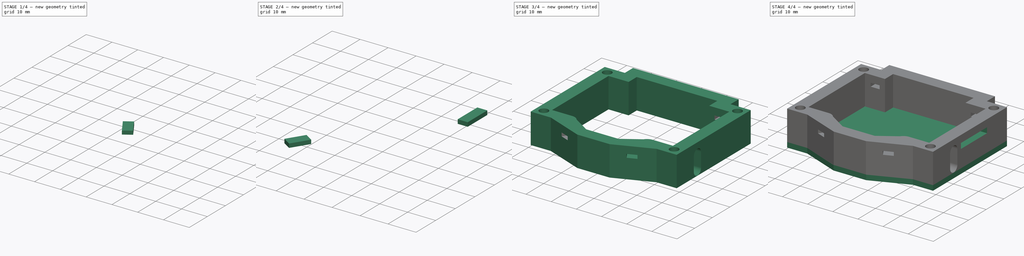
[diagram: build sequence overview — one tinted view per stage of 4, left to right]
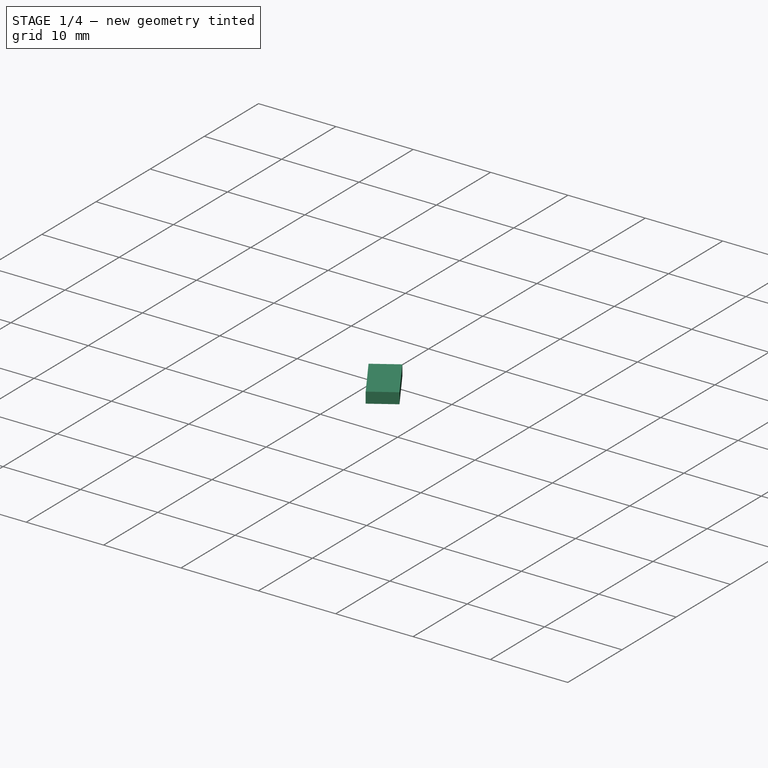
[diagram: stage 1 of 4 — iso view after this stage's code; geometry added in this stage tinted green]
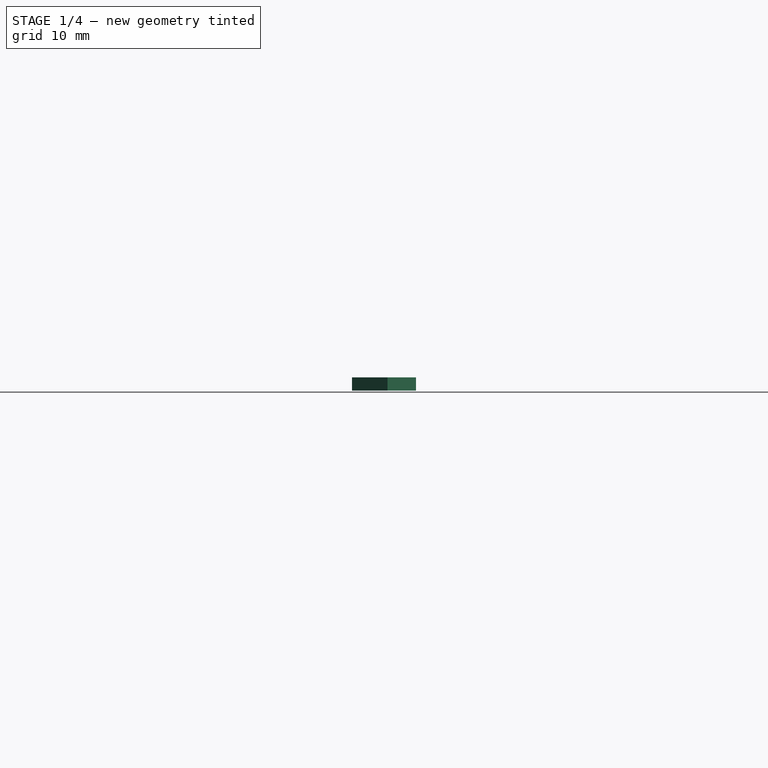
[diagram: stage 1 of 4 — front view after this stage's code; geometry added in this stage tinted green]
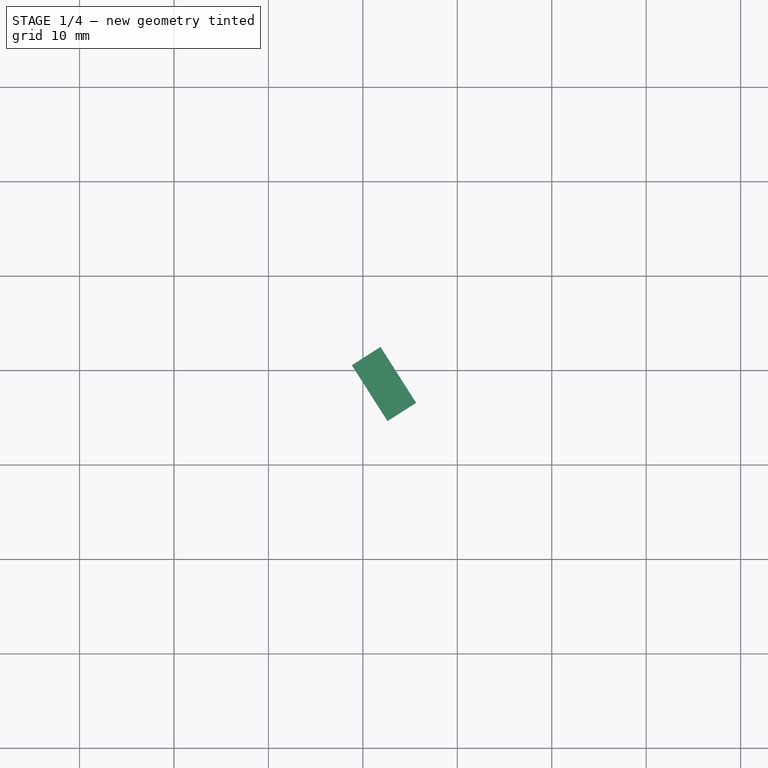
[diagram: stage 1 of 4 — top view after this stage's code; geometry added in this stage tinted green]
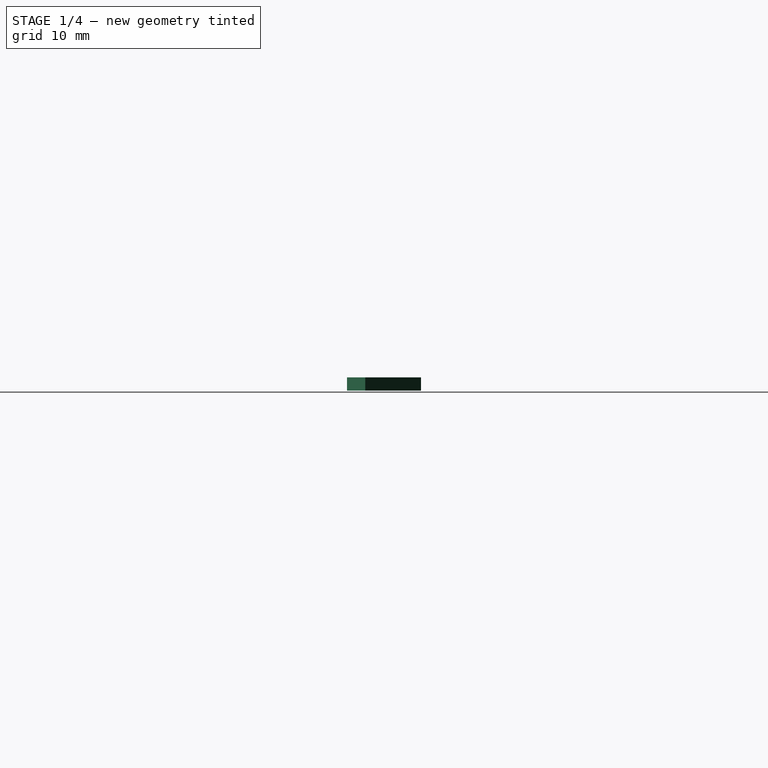
[diagram: stage 1 of 4 — right view after this stage's code; geometry added in this stage tinted green]
FCSTD DOCUMENT  (FreeCAD 0.21R33668 +26 (Git))
Label: watchCase
License: All rights reserved
LicenseURL: http://en.wikipedia.org/wiki/All_rights_reserved
objects: Part::Feature×14, App::Part×14, Sketcher::SketchObject×8, Part::Extrusion×8, Part::Cut×6
note: 36 computed .brp shape members not serialized (recipe doc carries the construction recipe); baked Part::Feature solids carry a one-line shape summary decoded from their .brp

FEATURE [Sketcher::SketchObject] Sketch
  FullyConstrained = true
  sketch-geometry (30):
    g0: LineSegment StartX=-16 StartY=41.4 StartZ=0 EndX=16 EndY=41.4 EndZ=0
    g1: LineSegment StartX=16 StartY=41.4 StartZ=0 EndX=16 EndY=36.8 EndZ=0
    g2: LineSegment StartX=16 StartY=36.8 StartZ=0 EndX=24 EndY=36.8 EndZ=0
    g3: LineSegment StartX=24 StartY=36.8 StartZ=0 EndX=24 EndY=4.8 EndZ=0
    g4: LineSegment StartX=-16 StartY=41.4 StartZ=0 EndX=-16 EndY=36.8 EndZ=0
    g5: LineSegment StartX=-16 StartY=36.8 StartZ=0 EndX=-24 EndY=36.8 EndZ=0
    g6: LineSegment StartX=-24 StartY=36.8 StartZ=0 EndX=-24 EndY=4.8 EndZ=0
    g7: LineSegment StartX=-6.4 StartY=-1 StartZ=0 EndX=6.4 EndY=-1 EndZ=0
    g8: LineSegment StartX=6.4 StartY=-1 StartZ=0 EndX=13.3 EndY=3.4 EndZ=0
    g9: LineSegment StartX=-6.4 StartY=-1 StartZ=0 EndX=-13.3 EndY=3.4 EndZ=0
    g10: LineSegment StartX=-24 StartY=4.8 StartZ=0 EndX=-16 EndY=4.8 EndZ=0
    g11: LineSegment StartX=24 StartY=4.8 StartZ=0 EndX=16 EndY=4.8 EndZ=0
    g12: ArcOfCircle CenterX=-16 CenterY=1.49643 CenterZ=0 NormalX=0 NormalY=0 NormalZ=1 AngleXU=0 Radius=3.30357 StartAngle=0.614091 EndAngle=1.5708
    g13: ArcOfCircle CenterX=16 CenterY=1.49643 CenterZ=0 NormalX=0 NormalY=0 NormalZ=1 AngleXU=0 Radius=3.30357 StartAngle=1.5708 EndAngle=2.5275
    g14: LineSegment StartX=-21 StartY=46.4 StartZ=0 EndX=21 EndY=46.4 EndZ=0
    g15: LineSegment StartX=21 StartY=46.4 StartZ=0 EndX=21 EndY=41.8 EndZ=0
    g16: LineSegment StartX=21 StartY=41.8 StartZ=0 EndX=29 EndY=41.8 EndZ=0
    g17: LineSegment StartX=29 StartY=41.8 StartZ=0 EndX=29 EndY=-0.2 EndZ=0
    g18: LineSegment StartX=29 StartY=-0.2 StartZ=0 EndX=21 EndY=-0.2 EndZ=0
    g19: LineSegment StartX=21 StartY=-0.2 StartZ=0 EndX=6.4 EndY=-6 EndZ=0
    g20: LineSegment StartX=6.4 StartY=-6 StartZ=0 EndX=-6.4 EndY=-6 EndZ=0
    g21: LineSegment StartX=-6.4 StartY=-6 StartZ=0 EndX=-21 EndY=-0.2 EndZ=0
    g22: LineSegment StartX=-21 StartY=-0.2 StartZ=0 EndX=-29 EndY=-0.2 EndZ=0
    g23: LineSegment StartX=-29 StartY=-0.2 StartZ=0 EndX=-29 EndY=41.8 EndZ=0
    g24: LineSegment StartX=-29 StartY=41.8 StartZ=0 EndX=-21 EndY=41.8 EndZ=0
    g25: LineSegment StartX=-21 StartY=46.4 StartZ=0 EndX=-21 EndY=41.8 EndZ=0
    g26: Circle CenterX=-25.875 CenterY=38.79 CenterZ=0 NormalX=0 NormalY=0 NormalZ=1 AngleXU=0 Radius=1.75
    g27: Circle CenterX=25.875 CenterY=38.79 CenterZ=0 NormalX=0 NormalY=0 NormalZ=1 AngleXU=0 Radius=1.75
    g28: Circle CenterX=25.875 CenterY=2.81 CenterZ=0 NormalX=0 NormalY=0 NormalZ=1 AngleXU=0 Radius=1.75
    g29: Circle CenterX=-25.875 CenterY=2.81 CenterZ=0 NormalX=0 NormalY=0 NormalZ=1 AngleXU=0 Radius=1.75
  constraints (92):
    c: Horizontal(g0)
    c: Coincident(g1,g0)
    c: Coincident(g2,g1)
    c: Horizontal(g2)
    c: Coincident(g3,g2)
    c: Vertical(g3)
    c: Coincident(g4,g0)
    c: Coincident(g5,g4)
    c: Horizontal(g5)
    c: Coincident(g6,g5)
    c: Vertical(g6)
    c: Horizontal(g7)
    c: Coincident(g8,g7)
    c: Coincident(g9,g7)
    c: Distance(g0) = 32
    c: Distance(g4) = 4.6
    c: Distance(g1) = 4.6
    c: Distance(g2) = 8
    c: Distance(g5) = 8
    c: Distance(g7) = 12.8
    c: Distance(g6) = 32
    c: Distance(g3) = 32
    c: Perpendicular(g1,g0)
    c: Perpendicular(g0,g4)
    c: DistanceX(g0,g-1) = 16
    c: DistanceY(g-1,g0) = 41.4
    c: DistanceX(g-1,g7) = 6.4
    c: DistanceX(g-1,g8) = 13.3
    c: DistanceX(g9,g-1) = 13.3
    c: DistanceY(g7,g8) = 4.4
    c: DistanceY(g7,g9) = 4.4
    c: DistanceY(g7,g-1) = 1
    c: Coincident(g10,g6)
    c: Horizontal(g10)
    c: Coincident(g11,g3)
    c: Horizontal(g11)
    c: Distance(g11) = 8
    c: Coincident(g12,g10)
    c: Coincident(g12,g9)
    c: Coincident(g13,g11)
    c: Coincident(g13,g8)
    c: Horizontal(g14)
    c: Coincident(g15,g14)
    c: Coincident(g16,g15)
    c: Horizontal(g16)
    c: Coincident(g17,g16)
    c: Vertical(g17)
    c: Coincident(g18,g17)
    c: Horizontal(g18)
    c: Coincident(g19,g18)
    c: Coincident(g20,g19)
    c: Coincident(g21,g20)
    c: Coincident(g22,g21)
    c: Horizontal(g22)
    c: Coincident(g23,g22)
    c: Vertical(g23)
    c: Coincident(g24,g23)
    c: Horizontal(g24)
    c: Coincident(g25,g14)
    c: Coincident(g25,g24)
    c: DistanceY(g0,g14) = 5
    c: DistanceY(g5,g23) = 5
    c: DistanceY(g2,g16) = 5
    c: DistanceX(g1,g15) = 5
    c: DistanceX(g0,g14) = 5
    c: DistanceX(g2,g16) = 5
    c: DistanceX(g24,g4) = 5
    c: DistanceX(g14,g0) = 5
    c: DistanceX(g23,g5) = 5
    c: DistanceX(g21,g10) = 5
    c: DistanceX(g18,g11) = -5
    c: DistanceY(g19,g7) = 5
    c: DistanceY(g20,g7) = 5
    c: DistanceX(g20,g7) = 0
    c: DistanceX(g7,g19) = 0
    c: DistanceY(g17,g3) = 5
    c: DistanceY(g22,g6) = 5
    c: DistanceY(g26,g23) = 3.01
    c: DistanceX(g23,g26) = 3.125
    c: Diameter(g26) = 3.5
    c: Diameter(g27) = 3.5
    c: DistanceX(g27,g16) = 3.125
    c: DistanceY(g27,g16) = 3.01
    c: DistanceY(g22,g29) = 3.01
    c: DistanceX(g22,g29) = 3.125
    c: Diameter(g29) = 3.5
    c: Diameter(g28) = 3.5
    c: DistanceY(g17,g28) = 3.01
    c: DistanceX(g28,g17) = 3.125
    c: DistanceX(g6,g10) = 8
    c: DistanceX(g10,g12) = 0
    c: DistanceX(g13,g11) = 0
FEATURE [Part::Extrusion] Extrude
  Base = -> Sketch
  Dir = (0,0,1)
  DirMode = 2
  FaceMakerClass = Part::FaceMakerBullseye
  LengthFwd = 12
  LengthRev = 0
  Solid = true
  Symmetric = false
FEATURE [Part::Feature] Part__Feature  label="COMPOUND"
  shape: bbox 9.6 x 2.201 x 14 mm, 546 faces, 34 solids (baked)
FEATURE [App::Part] L96_M33  label="L96-M33"
  Group = -> [Part__Feature]
  Origin = -> Origin
  Placement = pos=(0,33.9,1.63) rot=(0,0.707107,0.707107;3.14159rad)
FEATURE [Part::Feature] Part__Feature001  label="COMPOUND001"
  shape: bbox 11.55 x 3.77 x 14.66 mm, 1139 faces (baked)
FEATURE [App::Part] _169890001  label="2169890001"
  Group = -> [Part__Feature001]
  Origin = -> Origin001
  Placement = pos=(-18.85,11.34,4.63) rot=(0.707107,0,0.707107;3.14159rad)
FEATURE [Part::Feature] Part__Feature002  label="COMPOUND002"
  shape: bbox 13.2 x 2.553 x 19 mm, 864 faces, 77 solids (baked)
FEATURE [App::Part] ESP32_MINI_1_N4__3DModel_STEP_56544  label="ESP32-MINI-1-N4--3DModel-STEP-56544"
  Group = -> [Part__Feature002]
  Origin = -> Origin002
  Placement = pos=(13.65,18.1625,1.63) rot=(0.57735,-0.57735,-0.57735;2.0944rad)
FEATURE [Part::Feature] Part__Feature003  label="COMPOUND003"
  shape: bbox 4.7 x 1.35 x 3.55 mm, 317 faces, 7 solids (baked)
FEATURE [App::Part] EVQ_P7J01P  label="EVQ-P7J01P"
  Group = -> [Part__Feature003]
  Origin = -> Origin003
  Placement = pos=(-9.1,3.5,1.63) rot=(0.924452,-0.269619,-0.269619;1.64927rad)
FEATURE [Part::Feature] Part__Feature004  label="COMPOUND004"
  shape: bbox 1 x 0.6 x 1 mm, 79 faces, 7 solids (baked)
FEATURE [App::Part] VREG_MIC5504_3_3YMT_TZ  label="VREG_MIC5504-3.3YMT-TZ"
  Group = -> [Part__Feature004]
  Origin = -> Origin004
  Placement = pos=(0.151,6.227,1.63) rot=(0,0.707107,0.707107;3.14159rad)
FEATURE [Part::Feature] Part__Feature005  label="COMPOUND005"
  shape: bbox 14.6 x 1.8 x 14.45 mm, 840 faces, 16 solids (baked)
FEATURE [App::Part] MEM2067_02_180_00_A_REVB  label="MEM2067-02-180-00-A_REVB"
  Group = -> [Part__Feature005]
  Origin = -> Origin005
  Placement = pos=(-15.5,23.1,1.63) rot=(0.57735,-0.57735,-0.57735;2.0944rad)
FEATURE [Part::Feature] Part__Feature006  label="COMPOUND006"
  shape: bbox 6 x 1.75 x 4.9 mm, 126 faces, 9 solids (baked)
FEATURE [App::Part] _3K256_I_SN  label="23K256-I_SN"
  Group = -> [Part__Feature006]
  Origin = -> Origin006
  Placement = pos=(-2.4,14.4,1.63) rot=(0.57735,-0.57735,-0.57735;2.0944rad)
FEATURE [Part::Feature] Part__Feature007  label="COMPOUND007"
  shape: bbox 4.7 x 1.35 x 3.55 mm, 317 faces, 7 solids (baked)
FEATURE [App::Part] EVQ_P7J01P001  label="EVQ-P7J01P001"
  Group = -> [Part__Feature007]
  Origin = -> Origin007
  Placement = pos=(-19.9,35.3,1.63) rot=(0,0.707107,0.707107;3.14159rad)
FEATURE [Part::Feature] Part__Feature008  label="COMPOUND008"
  shape: bbox 4.7 x 1.35 x 3.55 mm, 317 faces, 7 solids (baked)
FEATURE [App::Part] EVQ_P7J01P002  label="EVQ-P7J01P002"
  Group = -> [Part__Feature008]
  Origin = -> Origin008
  Placement = pos=(9.1,3.5,1.63) rot=(0.924447,0.269627,0.269627;1.64928rad)
FEATURE [Part::Feature] Part__Feature009  label="COMPOUND009"
  shape: bbox 1.5 x 0.6 x 1.5 mm, 95 faces, 10 solids (baked)
FEATURE [App::Part] uqfn_1p5x1p5_8_tps22933
  Group = -> [Part__Feature009]
  Origin = -> Origin009
  Placement = pos=(-8.8,8.25,1.63) rot=(1,0,0;1.5708rad)
FEATURE [Part::Feature] Part__Feature010  label="COMPOUND010"
  shape: bbox 1 x 0.6 x 1 mm, 79 faces, 7 solids (baked)
FEATURE [App::Part] VREG_MIC5504_3_3YMT_TZ001  label="VREG_MIC5504-3.3YMT-TZ001"
  Group = -> [Part__Feature010]
  Origin = -> Origin010
  Placement = pos=(0.164,4.527,1.63) rot=(0,0.707107,0.707107;3.14159rad)
FEATURE [Part::Feature] Part__Feature011  label="COMPOUND011"
  shape: bbox 4.7 x 1.35 x 3.55 mm, 317 faces, 7 solids (baked)
FEATURE [App::Part] EVQ_P7J01P003  label="EVQ-P7J01P003"
  Group = -> [Part__Feature011]
  Origin = -> Origin011
  Placement = pos=(19.9,35.3,1.63) rot=(0,0.707107,0.707107;3.14159rad)
FEATURE [Part::Feature] Part__Feature012  label="COMPOUND012"
  shape: bbox 3 x 0.8 x 3 mm, 151 faces, 14 solids (baked)
FEATURE [App::Part] FT234XD_R__3DModel_STEP_1  label="FT234XD-R--3DModel-STEP-1"
  Group = -> [Part__Feature012]
  Origin = -> Origin012
  Placement = pos=(-2.725,2.565,-0.05) rot=(-1,0,0;1.5708rad)
FEATURE [Part::Feature] Part__Feature013  label="osw PCB"
  shape: bbox 46 x 41.4 x 1.58 mm, 130 faces (baked)
FEATURE [App::Part] osw_1  label="osw 1"
  Group = -> [L96_M33,_169890001,ESP32_MINI_1_N4__3DModel_STEP_56544,EVQ_P7J01P,VREG_MIC5504_3_3YMT_TZ,MEM2067_02_180_00_A_REVB,_3K256_I_SN,EVQ_P7J01P001,EVQ_P7J01P002,uqfn_1p5x1p5_8_tps22933,VREG_MIC5504_3_3YMT_TZ001,EVQ_P7J01P003,FT234XD_R__3DModel_STEP_1,Part__Feature013]
  Origin = -> Origin013
  Placement = pos=(0,0,10.75) rot=(0,1,0;3.14159rad)
FEATURE [Sketcher::SketchObject] Sketch002
  FullyConstrained = true
  MapMode = 5
  Placement = pos=(29,0,0) rot=(0.57735,0.57735,0.57735;2.0944rad)
  Support = -> [Extrude]
  sketch-geometry (4):
    g0: ArcOfCircle CenterX=11.59 CenterY=7.65 CenterZ=0 NormalX=0 NormalY=0 NormalZ=1 AngleXU=0 Radius=2.075 StartAngle=0 EndAngle=3.14159
    g1: ArcOfCircle CenterX=11.59 CenterY=2.15 CenterZ=0 NormalX=0 NormalY=0 NormalZ=1 AngleXU=0 Radius=2.075 StartAngle=3.14159 EndAngle=6.28319
    g2: LineSegment StartX=9.515 StartY=7.65 StartZ=0 EndX=9.515 EndY=2.15 EndZ=0
    g3: LineSegment StartX=13.665 StartY=2.15 StartZ=0 EndX=13.665 EndY=7.65 EndZ=0
  constraints (14):
    c: Coincident(g2,g0)
    c: Coincident(g2,g1)
    c: Vertical(g2)
    c: Coincident(g3,g1)
    c: Coincident(g3,g0)
    c: Equal(g2,g3)
    c: Parallel(g2,g3)
    c: DistanceY(g0,g0) = 0
    c: DistanceY(g1,g1) = 0
    c: DistanceY(g0,g0) = 0
    c: DistanceX(g0,g0) = 4.15
    c: DistanceX(g-1,g1) = 11.59
    c: DistanceY(g-1,g1) = 2.15
    c: DistanceY(g1,g0) = 5.5
FEATURE [Part::Extrusion] Extrude002
  Base = -> Sketch002
  Dir = (1,0,0)
  DirMode = 2
  FaceMakerClass = Part::FaceMakerBullseye
  LengthFwd = -5
  LengthRev = 0
  Solid = true
  Symmetric = false
FEATURE [Part::Cut] Cut
  Base = -> Extrude
  Tool = -> Extrude002
FEATURE [Sketcher::SketchObject] Sketch003
  FullyConstrained = false
  MapMode = 5
  Placement = pos=(2.30348,-3.61227,0) rot=(-0.202017,0.692528,0.692528;3.54026rad)
  Support = -> [Cut]
  sketch-geometry (4):
    g0: LineSegment StartX=-7.75879 StartY=9.11361 StartZ=0 EndX=-11.3387 EndY=9.11361 EndZ=0
    g1: LineSegment StartX=-11.3387 StartY=9.11361 StartZ=0 EndX=-11.3387 EndY=7.71042 EndZ=0
    g2: LineSegment StartX=-11.3387 StartY=7.71042 StartZ=0 EndX=-7.75879 EndY=7.71042 EndZ=0
    g3: LineSegment StartX=-7.75879 StartY=7.71042 StartZ=0 EndX=-7.75879 EndY=9.11361 EndZ=0
  constraints (8):
    c: Coincident(g0,g1)
    c: Coincident(g1,g2)
    c: Coincident(g2,g3)
    c: Coincident(g3,g0)
    c: Horizontal(g0)
    c: Horizontal(g2)
    c: Vertical(g1)
    c: Vertical(g3)
FEATURE [Part::Extrusion] Extrude003
  Base = -> Sketch003
  Dir = (-0.537666,0.843158,0)
  DirMode = 2
  FaceMakerClass = Part::FaceMakerBullseye
  LengthFwd = -7
  LengthRev = 0
  Solid = true
  Symmetric = false
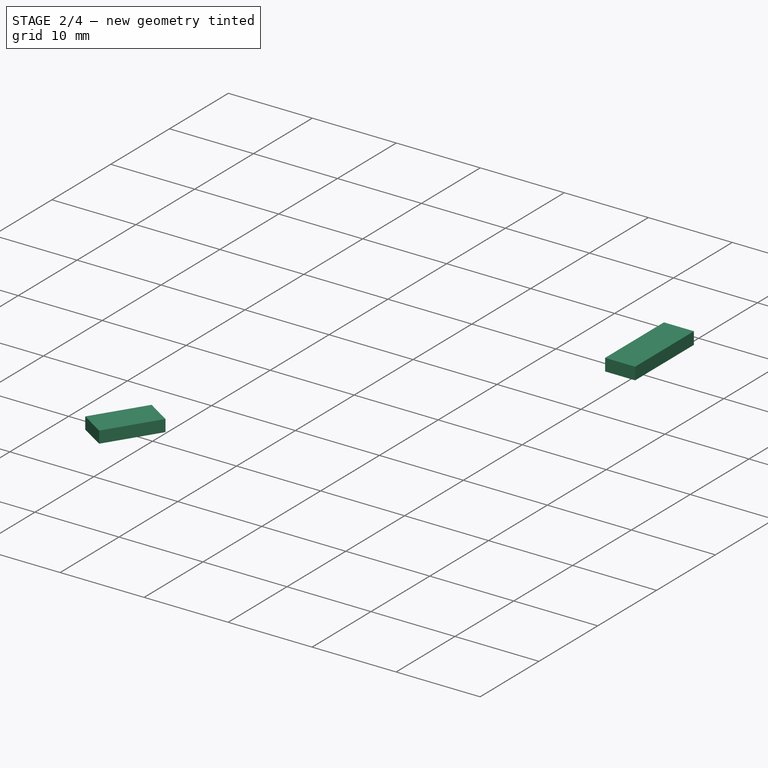
[diagram: stage 2 of 4 — iso view after this stage's code; geometry added in this stage tinted green]
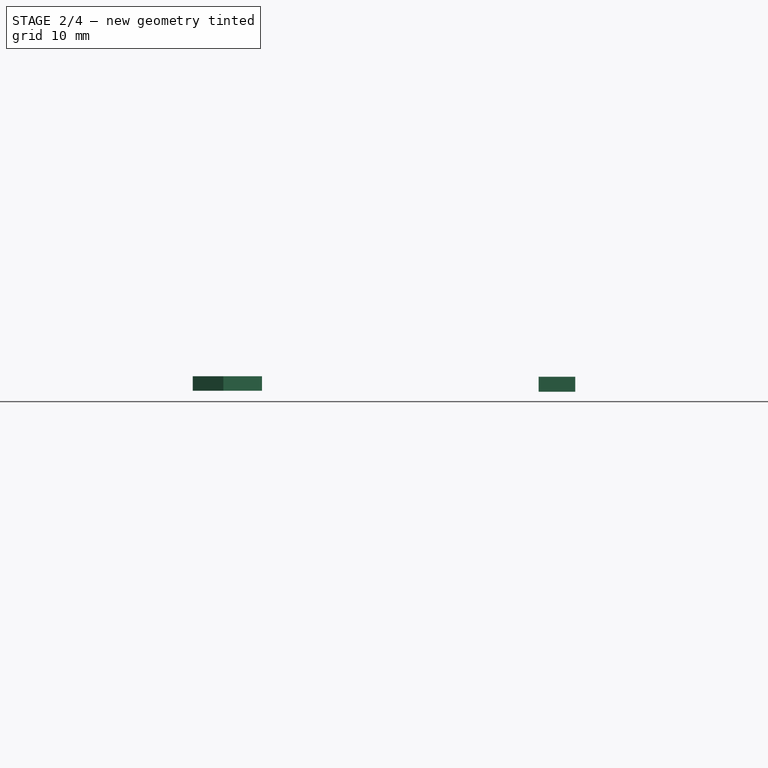
[diagram: stage 2 of 4 — front view after this stage's code; geometry added in this stage tinted green]
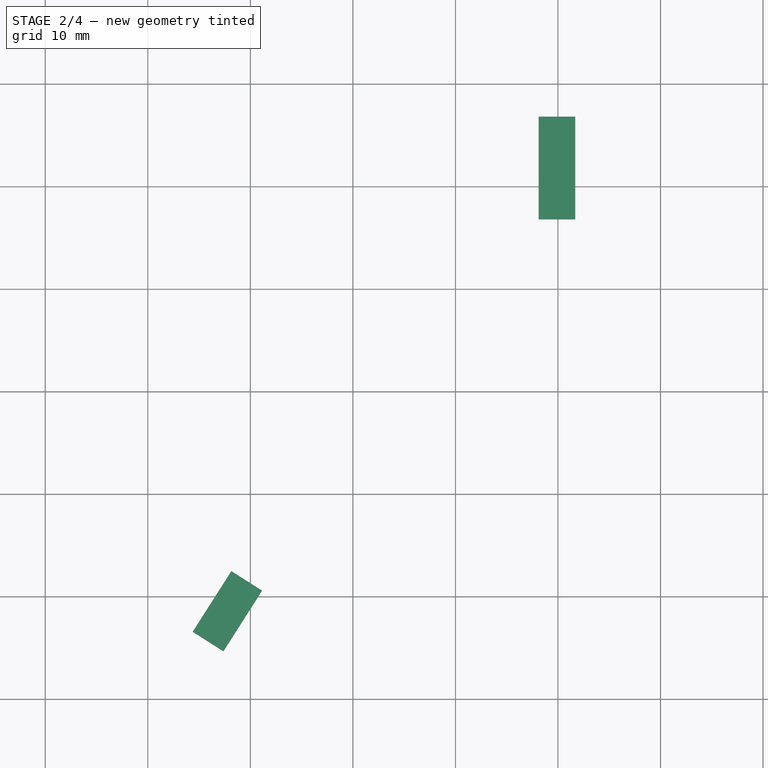
[diagram: stage 2 of 4 — top view after this stage's code; geometry added in this stage tinted green]
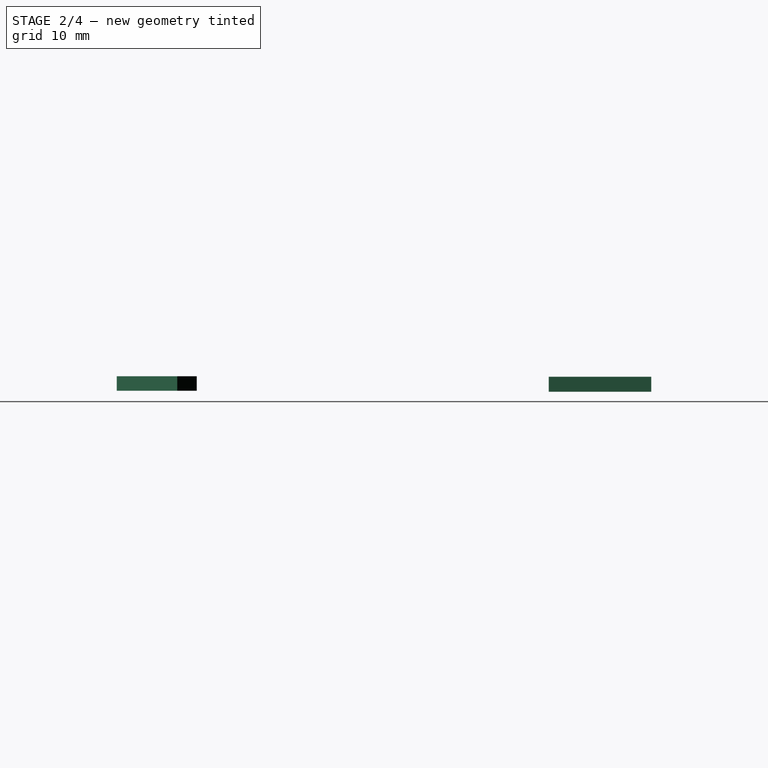
[diagram: stage 2 of 4 — right view after this stage's code; geometry added in this stage tinted green]
FEATURE [Part::Cut] Cut001
  Base = -> Cut
  Tool = -> Extrude003
FEATURE [Sketcher::SketchObject] Sketch004
  FullyConstrained = false
  MapMode = 5
  Placement = pos=(-2.30348,-3.61227,0) rot=(0.202017,0.692528,0.692528;2.74293rad)
  Support = -> [Cut001]
  sketch-geometry (4):
    g0: LineSegment StartX=11.3217 StartY=9.14448 StartZ=0 EndX=7.78013 EndY=9.14448 EndZ=0
    g1: LineSegment StartX=7.78013 StartY=9.14448 StartZ=0 EndX=7.78013 EndY=7.73299 EndZ=0
    g2: LineSegment StartX=7.78013 StartY=7.73299 StartZ=0 EndX=11.3217 EndY=7.73299 EndZ=0
    g3: LineSegment StartX=11.3217 StartY=7.73299 StartZ=0 EndX=11.3217 EndY=9.14448 EndZ=0
  constraints (8):
    c: Coincident(g0,g1)
    c: Coincident(g1,g2)
    c: Coincident(g2,g3)
    c: Coincident(g3,g0)
    c: Horizontal(g0)
    c: Horizontal(g2)
    c: Vertical(g1)
    c: Vertical(g3)
FEATURE [Sketcher::SketchObject] Sketch005
  FullyConstrained = false
  MapMode = 5
  Placement = pos=(0,36.8,0) rot=(1,0,0;1.5708rad)
  Support = -> [Cut001]
  sketch-geometry (4):
    g0: LineSegment StartX=21.682 StartY=9.1016 StartZ=0 EndX=18.1087 EndY=9.1016 EndZ=0
    g1: LineSegment StartX=18.1087 StartY=9.1016 StartZ=0 EndX=18.1087 EndY=7.6362 EndZ=0
    g2: LineSegment StartX=18.1087 StartY=7.6362 StartZ=0 EndX=21.682 EndY=7.6362 EndZ=0
    g3: LineSegment StartX=21.682 StartY=7.6362 StartZ=0 EndX=21.682 EndY=9.1016 EndZ=0
  constraints (8):
    c: Coincident(g0,g1)
    c: Coincident(g1,g2)
    c: Coincident(g2,g3)
    c: Coincident(g3,g0)
    c: Horizontal(g0)
    c: Horizontal(g2)
    c: Vertical(g1)
    c: Vertical(g3)
FEATURE [Part::Extrusion] Extrude004
  Base = -> Sketch005
  Dir = (0,-1,2e-16)
  DirMode = 2
  FaceMakerClass = Part::FaceMakerBullseye
  LengthFwd = -10
  LengthRev = 0
  Solid = true
  Symmetric = false
FEATURE [Sketcher::SketchObject] Sketch006
  FullyConstrained = false
  MapMode = 5
  Placement = pos=(0,36.8,0) rot=(1,0,0;1.5708rad)
  Support = -> [Cut002]
  sketch-geometry (4):
    g0: LineSegment StartX=-18.1336 StartY=9.14341 StartZ=0 EndX=-21.688 EndY=9.14341 EndZ=0
    g1: LineSegment StartX=-21.688 StartY=9.14341 StartZ=0 EndX=-21.688 EndY=7.71908 EndZ=0
    g2: LineSegment StartX=-21.688 StartY=7.71908 StartZ=0 EndX=-18.1336 EndY=7.71908 EndZ=0
    g3: LineSegment StartX=-18.1336 StartY=7.71908 StartZ=0 EndX=-18.1336 EndY=9.14341 EndZ=0
  constraints (8):
    c: Coincident(g0,g1)
    c: Coincident(g1,g2)
    c: Coincident(g2,g3)
    c: Coincident(g3,g0)
    c: Horizontal(g0)
    c: Horizontal(g2)
    c: Vertical(g1)
    c: Vertical(g3)
FEATURE [Part::Extrusion] Extrude005
  Base = -> Sketch004
  Dir = (0.537666,0.843158,0)
  DirMode = 2
  FaceMakerClass = Part::FaceMakerBullseye
  LengthFwd = -7
  LengthRev = 0
  Solid = true
  Symmetric = false
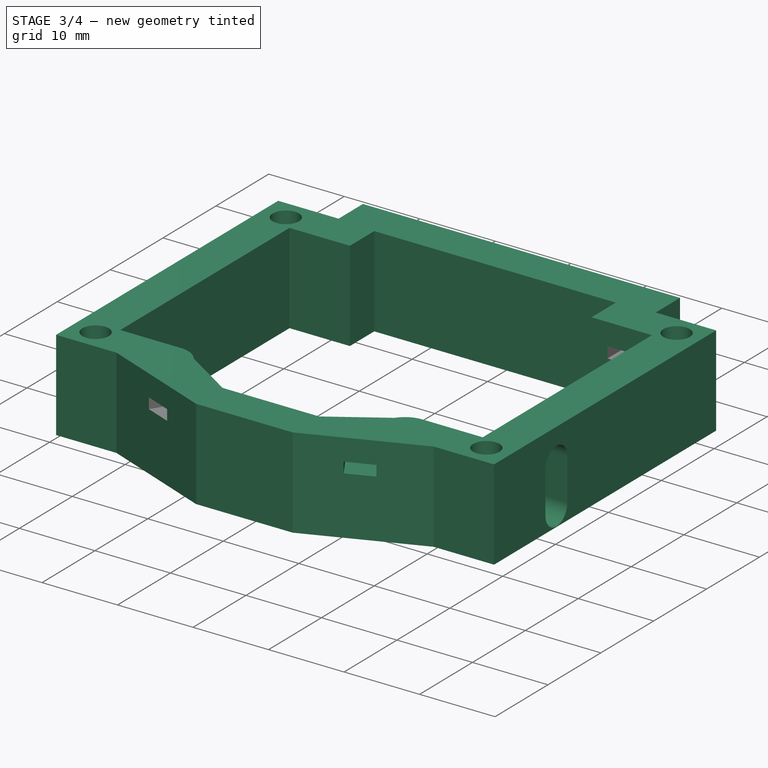
[diagram: stage 3 of 4 — iso view after this stage's code; geometry added in this stage tinted green]
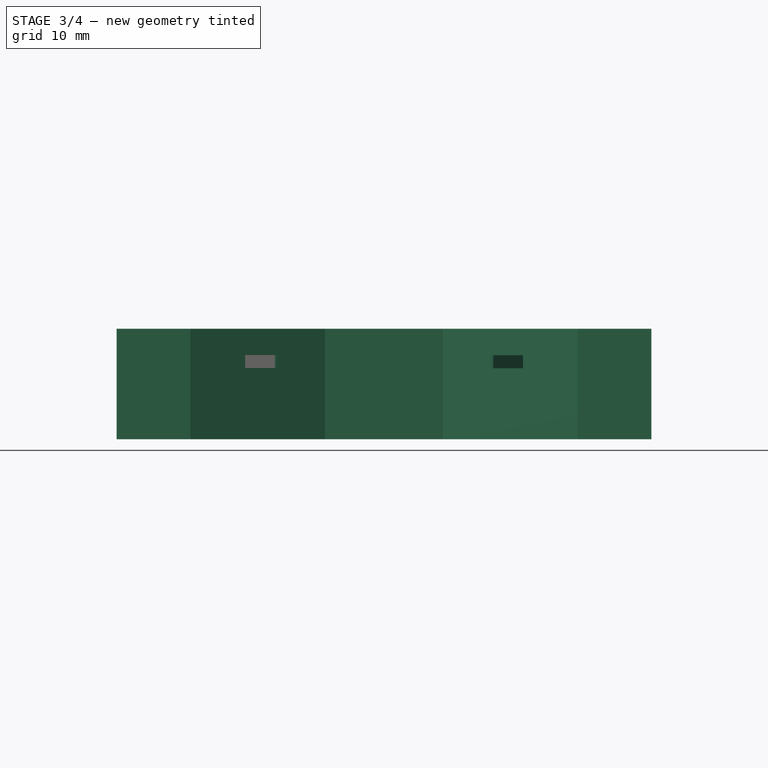
[diagram: stage 3 of 4 — front view after this stage's code; geometry added in this stage tinted green]
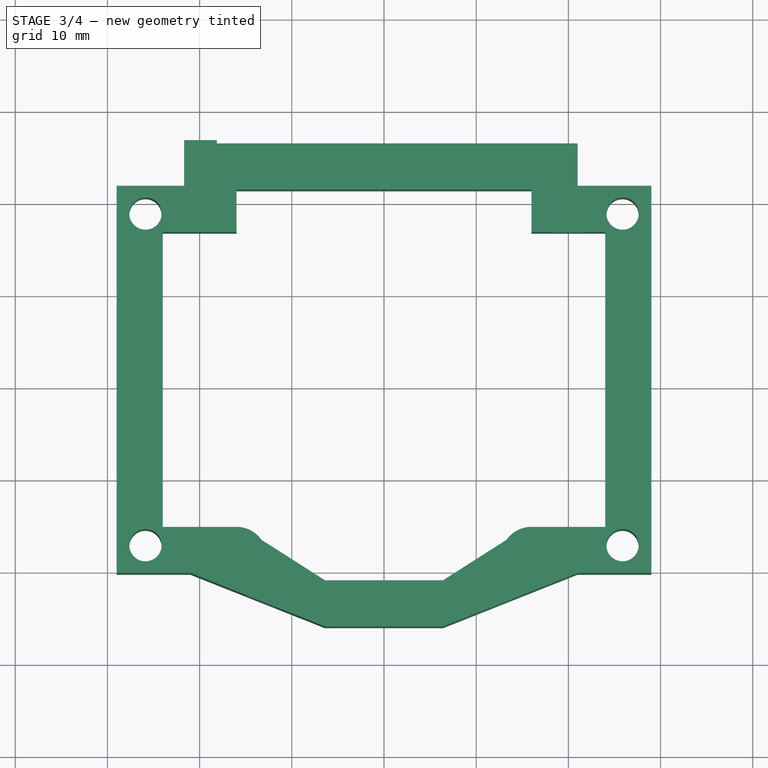
[diagram: stage 3 of 4 — top view after this stage's code; geometry added in this stage tinted green]
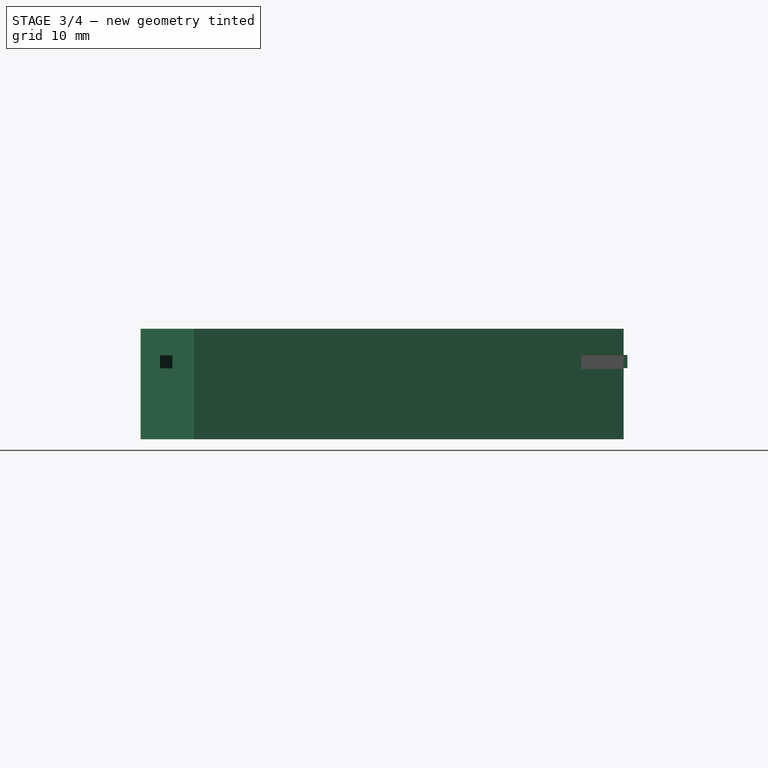
[diagram: stage 3 of 4 — right view after this stage's code; geometry added in this stage tinted green]
FEATURE [Part::Cut] Cut002
  Base = -> Cut001
  Tool = -> Extrude004
FEATURE [Part::Extrusion] Extrude006
  Base = -> Sketch006
  Dir = (0,-1,2e-16)
  DirMode = 2
  FaceMakerClass = Part::FaceMakerBullseye
  LengthFwd = -10
  LengthRev = 0
  Solid = true
  Symmetric = false
FEATURE [Part::Cut] Cut003
  Base = -> Cut002
  Tool = -> Extrude005
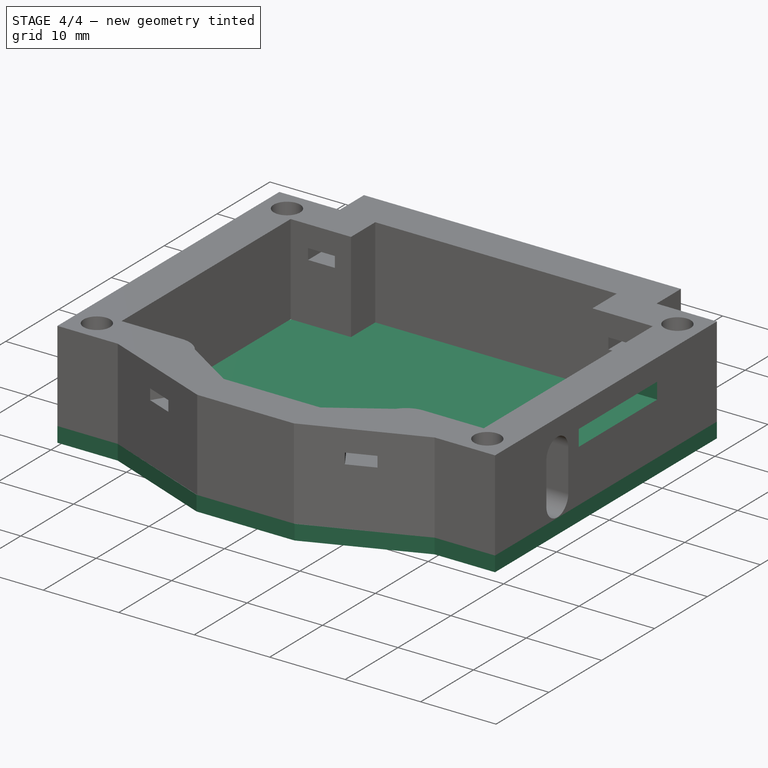
[diagram: stage 4 of 4 — iso view after this stage's code; geometry added in this stage tinted green]
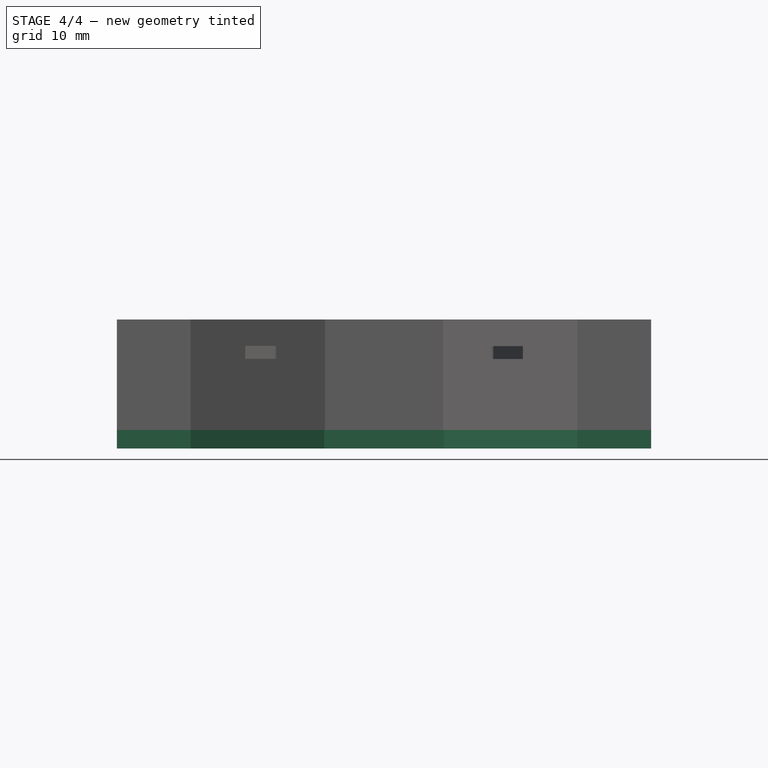
[diagram: stage 4 of 4 — front view after this stage's code; geometry added in this stage tinted green]
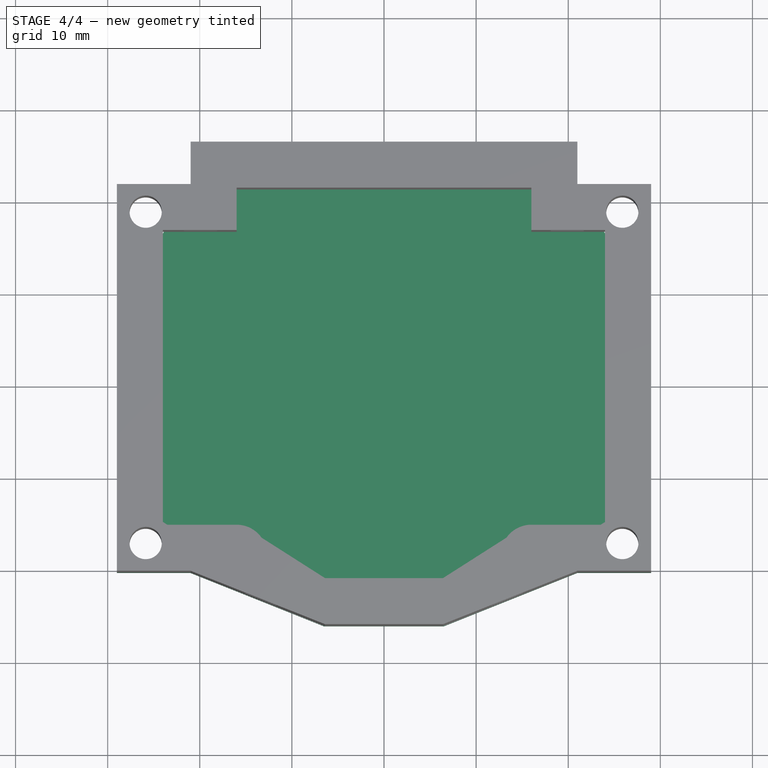
[diagram: stage 4 of 4 — top view after this stage's code; geometry added in this stage tinted green]
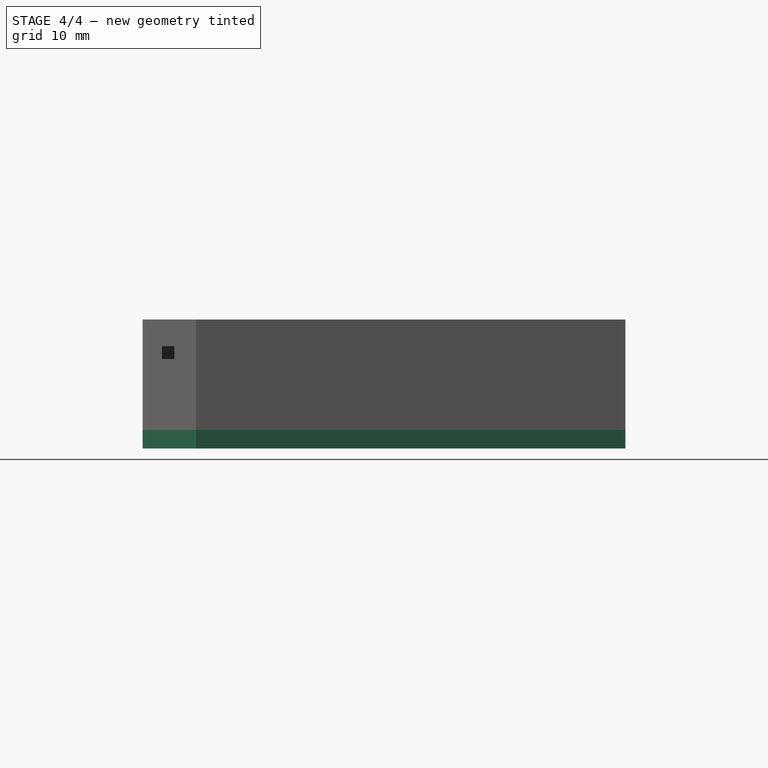
[diagram: stage 4 of 4 — right view after this stage's code; geometry added in this stage tinted green]
FEATURE [Sketcher::SketchObject] Sketch001
  FullyConstrained = true
  MapMode = 5
  Placement = pos=(0,0,0) rot=(1,0,0;3.14159rad)
  Support = -> [Extrude]
  sketch-geometry (36):
    g0: LineSegment StartX=-6.5 StartY=6 StartZ=0 EndX=6.5 EndY=6 EndZ=0
    g1: LineSegment StartX=6.5 StartY=6 StartZ=0 EndX=21 EndY=0.2 EndZ=0
    g2: LineSegment StartX=21 StartY=0.2 StartZ=0 EndX=29 EndY=0.2 EndZ=0
    g3: LineSegment StartX=29 StartY=0.2 StartZ=0 EndX=29 EndY=-41.8 EndZ=0
    g4: LineSegment StartX=29 StartY=-41.8 StartZ=0 EndX=21 EndY=-41.8 EndZ=0
    g5: LineSegment StartX=21 StartY=-41.8 StartZ=0 EndX=21 EndY=-46.4 EndZ=0
    g6: LineSegment StartX=21 StartY=-46.4 StartZ=0 EndX=-21 EndY=-46.4 EndZ=0
    g7: LineSegment StartX=-21 StartY=-46.4 StartZ=0 EndX=-21 EndY=-41.8 EndZ=0
    g8: LineSegment StartX=-21 StartY=-41.8 StartZ=0 EndX=-29 EndY=-41.8 EndZ=0
    g9: LineSegment StartX=-29 StartY=-41.8 StartZ=0 EndX=-29 EndY=0.2 EndZ=0
    g10: LineSegment StartX=-29 StartY=0.2 StartZ=0 EndX=-21 EndY=0.2 EndZ=0
    g11: LineSegment StartX=-21 StartY=0.2 StartZ=0 EndX=-6.5 EndY=6 EndZ=0
    g12: LineSegment StartX=-27.4375 StartY=-0.1 StartZ=0 EndX=-24.3125 EndY=-0.1 EndZ=0
    g13: LineSegment StartX=-24.3125 StartY=-0.1 StartZ=0 EndX=-22.75 EndY=-2.80633 EndZ=0
    g14: LineSegment StartX=-22.75 StartY=-2.80633 StartZ=0 EndX=-24.3125 EndY=-5.51266 EndZ=0
    g15: LineSegment StartX=-24.3125 StartY=-5.51266 StartZ=0 EndX=-27.4375 EndY=-5.51266 EndZ=0
    g16: LineSegment StartX=-27.4375 StartY=-5.51266 StartZ=0 EndX=-29 EndY=-2.80633 EndZ=0
    g17: LineSegment StartX=-29 StartY=-2.80633 StartZ=0 EndX=-27.4375 EndY=-0.1 EndZ=0
    g18: LineSegment StartX=24.3125 StartY=-0.1 StartZ=0 EndX=27.4375 EndY=-0.1 EndZ=0
    g19: LineSegment StartX=27.4375 StartY=-0.1 StartZ=0 EndX=29 EndY=-2.80633 EndZ=0
    g20: LineSegment StartX=29 StartY=-2.80633 StartZ=0 EndX=27.4375 EndY=-5.51266 EndZ=0
    g21: LineSegment StartX=27.4375 StartY=-5.51266 StartZ=0 EndX=24.3125 EndY=-5.51266 EndZ=0
    g22: LineSegment StartX=24.3125 StartY=-5.51266 StartZ=0 EndX=22.75 EndY=-2.80633 EndZ=0
    g23: LineSegment StartX=22.75 StartY=-2.80633 StartZ=0 EndX=24.3125 EndY=-0.1 EndZ=0
    g24: LineSegment StartX=24.3125 StartY=-41.5 StartZ=0 EndX=27.4375 EndY=-41.5 EndZ=0
    g25: LineSegment StartX=27.4375 StartY=-41.5 StartZ=0 EndX=29 EndY=-38.7937 EndZ=0
    g26: LineSegment StartX=29 StartY=-38.7937 StartZ=0 EndX=27.4375 EndY=-36.0873 EndZ=0
    g27: LineSegment StartX=27.4375 StartY=-36.0873 StartZ=0 EndX=24.3125 EndY=-36.0873 EndZ=0
    g28: LineSegment StartX=24.3125 StartY=-36.0873 StartZ=0 EndX=22.75 EndY=-38.7937 EndZ=0
    g29: LineSegment StartX=22.75 StartY=-38.7937 StartZ=0 EndX=24.3125 EndY=-41.5 EndZ=0
    g30: LineSegment StartX=-27.4375 StartY=-41.5 StartZ=0 EndX=-24.3125 EndY=-41.5 EndZ=0
    g31: LineSegment StartX=-24.3125 StartY=-41.5 StartZ=0 EndX=-22.75 EndY=-38.7937 EndZ=0
    g32: LineSegment StartX=-22.75 StartY=-38.7937 StartZ=0 EndX=-24.3125 EndY=-36.0873 EndZ=0
    g33: LineSegment StartX=-24.3125 StartY=-36.0873 StartZ=0 EndX=-27.4375 EndY=-36.0873 EndZ=0
    g34: LineSegment StartX=-27.4375 StartY=-36.0873 StartZ=0 EndX=-29 EndY=-38.7937 EndZ=0
    g35: LineSegment StartX=-29 StartY=-38.7937 StartZ=0 EndX=-27.4375 EndY=-41.5 EndZ=0
  constraints (108):
    c: Horizontal(g0)
    c: Coincident(g1,g0)
    c: Coincident(g2,g1)
    c: Horizontal(g2)
    c: Coincident(g3,g2)
    c: Vertical(g3)
    c: Coincident(g4,g3)
    c: Horizontal(g4)
    c: Coincident(g5,g4)
    c: Coincident(g6,g5)
    c: Horizontal(g6)
    c: Coincident(g7,g6)
    c: Vertical(g7)
    c: Coincident(g8,g7)
    c: Horizontal(g8)
    c: Coincident(g9,g8)
    c: Vertical(g9)
    c: Coincident(g10,g9)
    c: Horizontal(g10)
    c: Coincident(g11,g10)
    c: Coincident(g11,g0)
    c: Distance(g0) = 13
    c: DistanceX(g0,g-1) = 6.5
    c: DistanceY(g-1,g0) = 6
    c: DistanceY(g9,g9) = 42
    c: DistanceY(g3,g3) = 42
    c: DistanceX(g8,g7) = 8
    c: DistanceX(g5,g3) = 8
    c: DistanceX(g1,g2) = 8
    c: DistanceX(g9,g10) = 8
    c: DistanceY(g6,g7) = 4.6
    c: DistanceY(g5,g4) = 4.6
    c: Perpendicular(g4,g5)
    c: DistanceX(g6,g-1) = 21
    c: DistanceX(g-1,g5) = 21
    c: DistanceY(g5,g-1) = 46.4
    c: Horizontal(g12)
    c: Coincident(g13,g12)
    c: Coincident(g14,g13)
    c: Coincident(g15,g14)
    c: Horizontal(g15)
    c: Coincident(g16,g15)
    c: Coincident(g17,g16)
    c: Coincident(g17,g12)
    c: Angle(g13,g14) = 2.0944
    c: Angle(g16,g17) = 2.0944
    c: Angle(g17,g12) = 2.0944
    c: Angle(g12,g13) = 2.0944
    c: Distance(g14,g12) = 6.25
    c: Distance(g13,g16) = 6.25
    c: Distance(g15,g12) = 6.25
    c: Equal(g17,g12)
    c: DistanceY(g12,g9) = 0.3
    c: DistanceX(g9,g16) = 0
    c: Coincident(g19,g18)
    c: Coincident(g20,g19)
    c: Coincident(g21,g20)
    c: Coincident(g22,g21)
    c: Coincident(g23,g22)
    c: Coincident(g23,g18)
    c: Angle(g23,g18) = 2.0944
    c: Angle(g19,g20) = 2.0944
    c: Angle(g18,g19) = 2.0944
    c: Parallel(g18,g2)
    c: Distance(g18,g21) = 6.25
    c: Distance(g18,g20) = 6.25
    c: DistanceY(g18,g2) = 0.3
    c: DistanceX(g19,g2) = 0
    c: Distance(g22,g19) = 6.25
    c: Equal(g22,g23)
    c: Equal(g20,g19)
    c: Angle(g22,g23) = 2.0944
    c: Horizontal(g24)
    c: Coincident(g25,g24)
    c: Coincident(g26,g25)
    c: Coincident(g27,g26)
    c: Horizontal(g27)
    c: Coincident(g28,g27)
    c: Coincident(g29,g28)
    c: Coincident(g29,g24)
    c: DistanceY(g3,g24) = 0.3
    c: DistanceX(g25,g3) = 0
    c: Distance(g28,g25) = 6.25
    c: Distance(g24,g26) = 6.25
    c: Distance(g27,g24) = 6.25
    c: Equal(g28,g27)
    c: Equal(g24,g29)
    c: Equal(g25,g26)
    c: Angle(g29,g28) = 2.0944
    c: Angle(g27,g26) = 2.0944
    c: Horizontal(g30)
    c: Coincident(g31,g30)
    c: Coincident(g32,g31)
    c: Coincident(g33,g32)
    c: Horizontal(g33)
    c: Coincident(g34,g33)
    c: Coincident(g35,g34)
    c: Coincident(g35,g30)
    c: DistanceX(g8,g34) = 0
    c: DistanceY(g8,g30) = 0.3
    c: Distance(g34,g31) = 6.25
    c: Distance(g32,g30) = 6.25
    c: Distance(g30,g33) = 6.25
    c: Equal(g34,g35)
    c: Equal(g30,g31)
    c: Equal(g32,g33)
    c: Angle(g35,g34) = 2.0944
    c: Angle(g33,g32) = 2.0944
FEATURE [Part::Extrusion] Extrude001
  Base = -> Sketch001
  Dir = (0,0,-1)
  DirMode = 2
  FaceMakerClass = Part::FaceMakerBullseye
  LengthFwd = 2
  LengthRev = 0
  Solid = true
  Symmetric = false
FEATURE [Part::Cut] Cut004
  Base = -> Cut003
  Tool = -> Extrude006
FEATURE [Sketcher::SketchObject] Sketch007
  FullyConstrained = false
  MapMode = 5
  Placement = pos=(24,0,0) rot=(0.57735,-0.57735,-0.57735;2.0944rad)
  Support = -> [Cut004]
  sketch-geometry (4):
    g0: LineSegment StartX=-15.6505 StartY=9.10603 StartZ=0 EndX=-30.4746 EndY=9.10603 EndZ=0
    g1: LineSegment StartX=-30.4746 StartY=9.10603 StartZ=0 EndX=-30.4746 EndY=6.96089 EndZ=0
    g2: LineSegment StartX=-30.4746 StartY=6.96089 StartZ=0 EndX=-15.6505 EndY=6.96089 EndZ=0
    g3: LineSegment StartX=-15.6505 StartY=6.96089 StartZ=0 EndX=-15.6505 EndY=9.10603 EndZ=0
  constraints (8):
    c: Coincident(g0,g1)
    c: Coincident(g1,g2)
    c: Coincident(g2,g3)
    c: Coincident(g3,g0)
    c: Horizontal(g0)
    c: Horizontal(g2)
    c: Vertical(g1)
    c: Vertical(g3)
FEATURE [Part::Extrusion] Extrude007
  Base = -> Sketch007
  Dir = (-1,0,0)
  DirMode = 2
  FaceMakerClass = Part::FaceMakerBullseye
  LengthFwd = -7
  LengthRev = 0
  Solid = true
  Symmetric = false
FEATURE [Part::Cut] Cut005
  Base = -> Cut004
  Tool = -> Extrude007
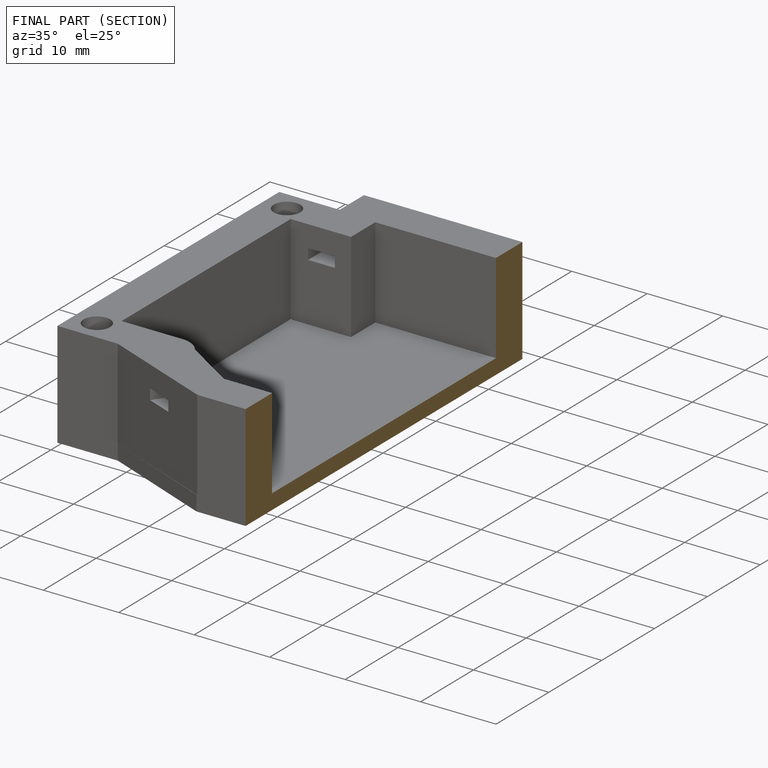
[diagram: finished part — half-section view (interior)]
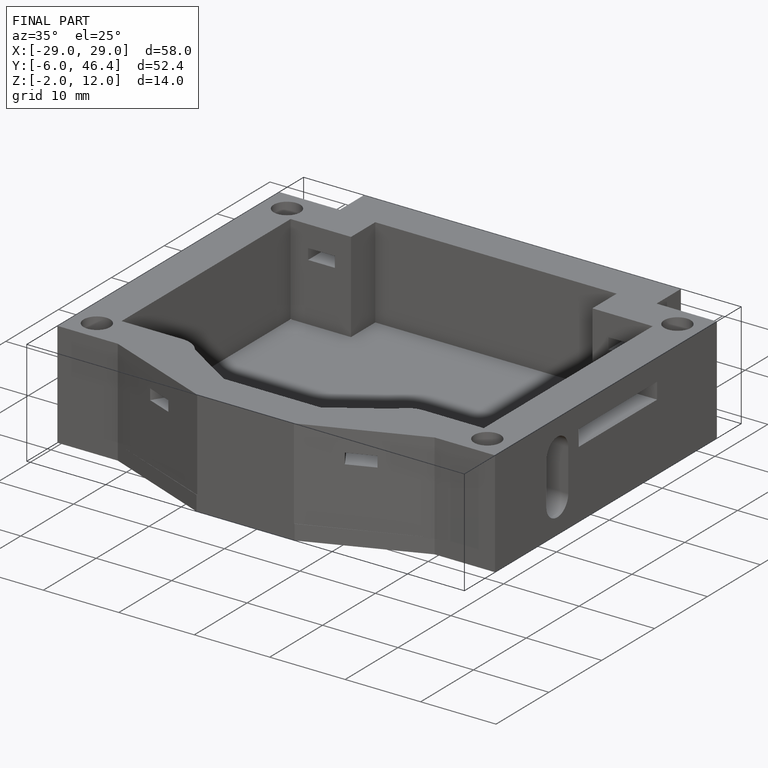
[diagram: finished part — iso view with bounding-box wireframe]
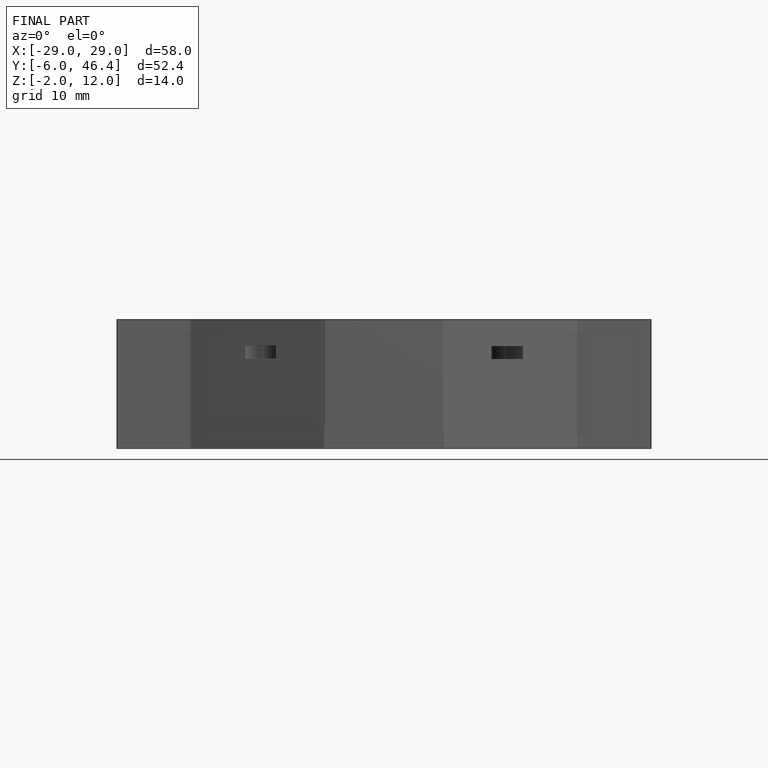
[diagram: finished part — front view with bounding-box wireframe]
